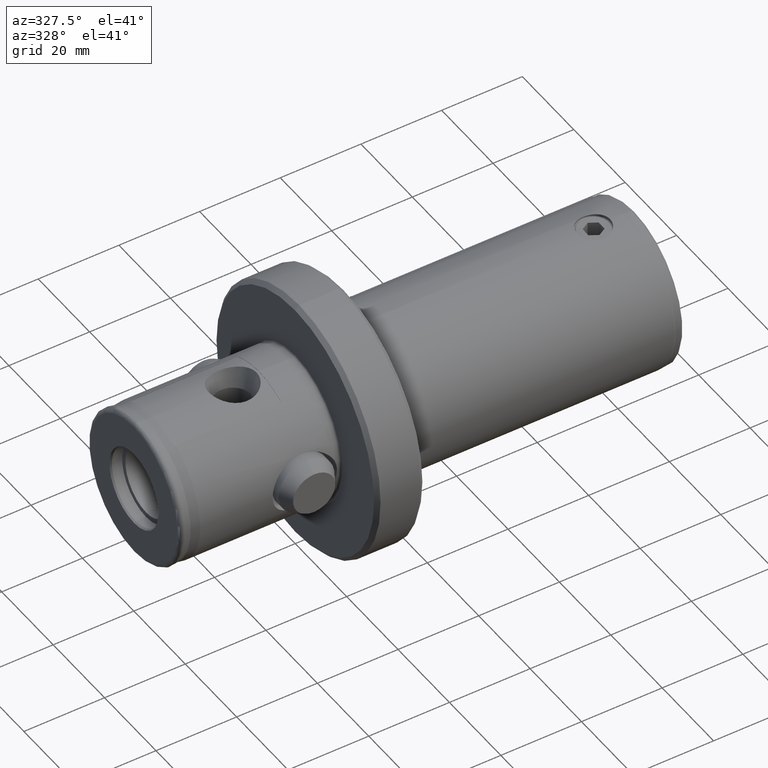
[diagram: clean part render]
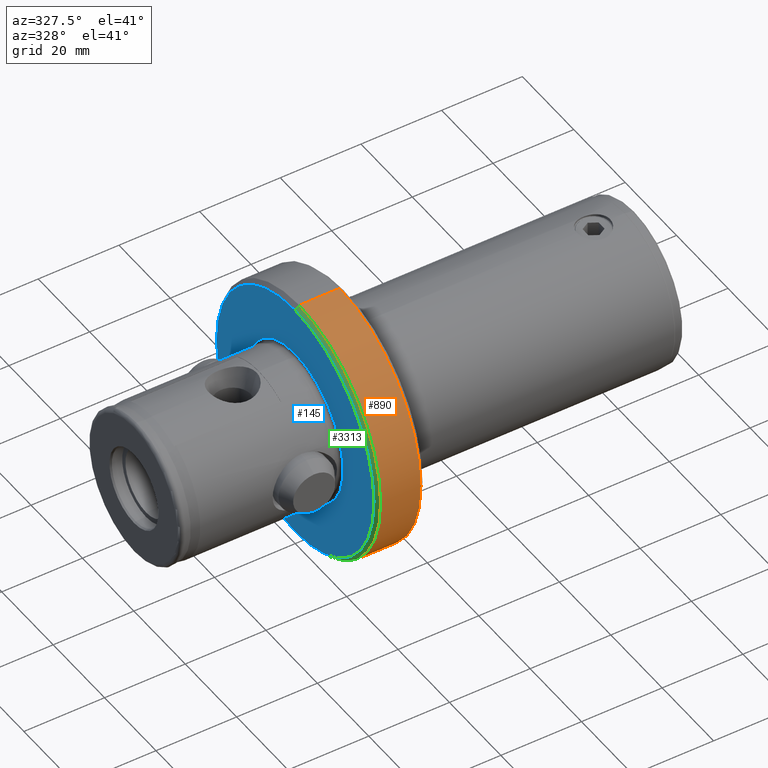
[diagram: same view with three faces highlighted in distinct colors, each labeled with its STEP entity id]
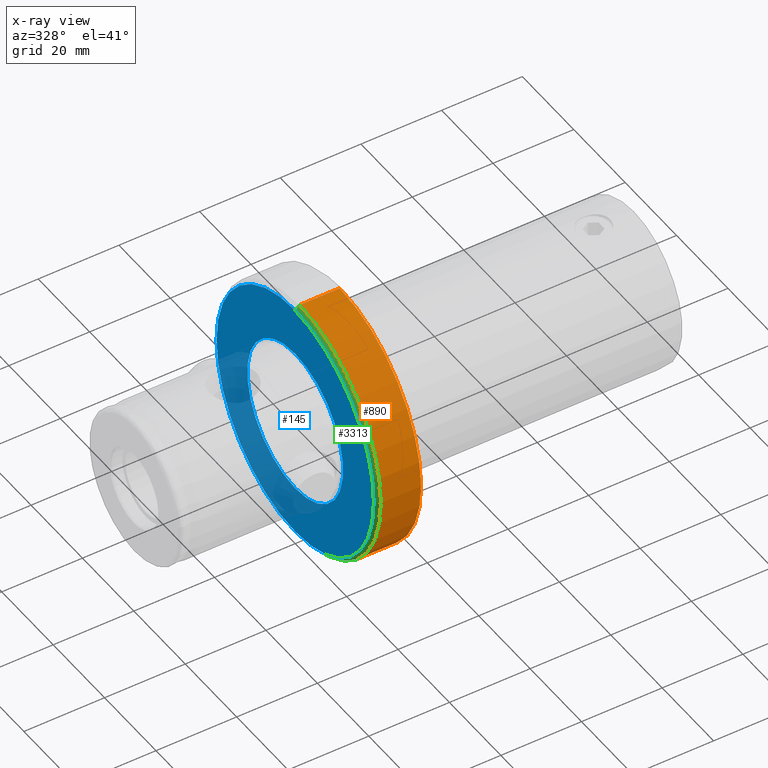
[diagram: x-ray of the same camera — body ghosted, the three highlighted faces saturated]
A machine part, auxiliary view with three faces highlighted in distinct colors.
The next image is the same camera in x-ray (body ghosted, the three faces saturated) — at least one of them is partly hidden behind the body in this view.
Their STEP definitions:

[orange] entity #890 — the highlighted cylindrical surface (partial cylindrical patch) has radius 31.635 mm, axis along (-1, -0, -0).
#10 = AXIS2_PLACEMENT_3D ( 'NONE', #1339, #4205, #1751 ) ;
#40 = AXIS2_PLACEMENT_3D ( 'NONE', #4104, #1648, #4503 ) ;
#90 = CARTESIAN_POINT ( 'NONE',  ( 51.00000000000000700, 0.0000000000000000000, 31.63500000000000500 ) ) ;
#210 = CIRCLE ( 'NONE', #40, 31.63500000000000500 ) ;
#414 = VECTOR ( 'NONE', #2721, 1000.000000000000000 ) ;
#622 = DIRECTION ( 'NONE',  ( -1.000000000000000000, -0.0000000000000000000, -0.0000000000000000000 ) ) ;
#739 = ORIENTED_EDGE ( 'NONE', *, *, #5235, .F. ) ;
#773 = EDGE_CURVE ( 'NONE', #2010, #4891, #2336, .T. ) ;
#784 = DIRECTION ( 'NONE',  ( -1.000000000000000000, -0.0000000000000000000, -0.0000000000000000000 ) ) ;
#796 = CARTESIAN_POINT ( 'NONE',  ( 41.00000000000000000, 0.0000000000000000000, 31.63500000000000500 ) ) ;
#872 = VERTEX_POINT ( 'NONE', #796 ) ;
#890 = ADVANCED_FACE ( 'NONE', ( #4126 ), #2909, .T. ) ;
#1014 = CARTESIAN_POINT ( 'NONE',  ( 0.0000000000000000000, 0.0000000000000000000, 0.0000000000000000000 ) ) ;
#1123 = ORIENTED_EDGE ( 'NONE', *, *, #2607, .T. ) ;
#1339 = CARTESIAN_POINT ( 'NONE',  ( 41.00000000000000000, 0.0000000000000000000, 0.0000000000000000000 ) ) ;
#1648 = DIRECTION ( 'NONE',  ( -1.000000000000000000, -0.0000000000000000000, -0.0000000000000000000 ) ) ;
#1697 = VERTEX_POINT ( 'NONE', #90 ) ;
#1699 = CARTESIAN_POINT ( 'NONE',  ( 51.00000000000000700, 3.874170149102652900E-015, -31.63500000000000500 ) ) ;
#1751 = DIRECTION ( 'NONE',  ( 0.0000000000000000000, 0.0000000000000000000, 1.000000000000000000 ) ) ;
#2010 = VERTEX_POINT ( 'NONE', #1699 ) ;
#2049 = CIRCLE ( 'NONE', #10, 31.63500000000000500 ) ;
#2336 = LINE ( 'NONE', #4746, #414 ) ;
#2607 = EDGE_CURVE ( 'NONE', #1697, #872, #4167, .T. ) ;
#2721 = DIRECTION ( 'NONE',  ( -1.000000000000000000, -0.0000000000000000000, -0.0000000000000000000 ) ) ;
#2799 = EDGE_LOOP ( 'NONE', ( #3910, #4906, #1123, #739 ) ) ;
#2909 = CYLINDRICAL_SURFACE ( 'NONE', #4575, 31.63500000000000500 ) ;
#3066 = CARTESIAN_POINT ( 'NONE',  ( 41.00000000000000000, 3.874170149102652900E-015, -31.63500000000000500 ) ) ;
#3069 = CARTESIAN_POINT ( 'NONE',  ( 0.0000000000000000000, 0.0000000000000000000, 31.63500000000000500 ) ) ;
#3080 = VECTOR ( 'NONE', #622, 1000.000000000000000 ) ;
#3910 = ORIENTED_EDGE ( 'NONE', *, *, #773, .F. ) ;
#4104 = CARTESIAN_POINT ( 'NONE',  ( 51.00000000000000700, 0.0000000000000000000, 0.0000000000000000000 ) ) ;
#4120 = DIRECTION ( 'NONE',  ( 0.0000000000000000000, 0.0000000000000000000, 1.000000000000000000 ) ) ;
#4126 = FACE_OUTER_BOUND ( 'NONE', #2799, .T. ) ;
#4167 = LINE ( 'NONE', #3069, #3080 ) ;
#4205 = DIRECTION ( 'NONE',  ( -1.000000000000000000, -0.0000000000000000000, -0.0000000000000000000 ) ) ;
#4492 = EDGE_CURVE ( 'NONE', #2010, #1697, #210, .T. ) ;
#4503 = DIRECTION ( 'NONE',  ( 0.0000000000000000000, 0.0000000000000000000, 1.000000000000000000 ) ) ;
#4575 = AXIS2_PLACEMENT_3D ( 'NONE', #1014, #784, #4120 ) ;
#4746 = CARTESIAN_POINT ( 'NONE',  ( 0.0000000000000000000, 3.874170149102652900E-015, -31.63500000000000500 ) ) ;
#4891 = VERTEX_POINT ( 'NONE', #3066 ) ;
#4906 = ORIENTED_EDGE ( 'NONE', *, *, #4492, .T. ) ;
#5235 = EDGE_CURVE ( 'NONE', #4891, #872, #2049, .T. ) ;

[blue] entity #145 — the highlighted planar face has unit normal (1, 0, 0).
#125 = DIRECTION ( 'NONE',  ( 1.000000000000000000, 0.0000000000000000000, 0.0000000000000000000 ) ) ;
#145 = ADVANCED_FACE ( 'NONE', ( #5148, #1746 ), #2706, .F. ) ;
#179 = EDGE_LOOP ( 'NONE', ( #3950, #1819 ) ) ;
#333 = EDGE_CURVE ( 'NONE', #3730, #4328, #2580, .T. ) ;
#474 = AXIS2_PLACEMENT_3D ( 'NONE', #1027, #3896, #1446 ) ;
#517 = DIRECTION ( 'NONE',  ( -1.000000000000000000, -0.0000000000000000000, -0.0000000000000000000 ) ) ;
#523 = DIRECTION ( 'NONE',  ( 0.0000000000000000000, 0.0000000000000000000, 1.000000000000000000 ) ) ;
#541 = CIRCLE ( 'NONE', #474, 30.63500000000000200 ) ;
#629 = EDGE_CURVE ( 'NONE', #2849, #1568, #541, .T. ) ;
#764 = CARTESIAN_POINT ( 'NONE',  ( 40.00000000000000000, 0.0000000000000000000, 0.0000000000000000000 ) ) ;
#812 = EDGE_CURVE ( 'NONE', #4328, #3730, #1240, .T. ) ;
#864 = CARTESIAN_POINT ( 'NONE',  ( 40.00000000000000000, 0.0000000000000000000, 0.0000000000000000000 ) ) ;
#870 = EDGE_CURVE ( 'NONE', #1568, #2849, #2071, .T. ) ;
#895 = DIRECTION ( 'NONE',  ( -1.000000000000000000, -0.0000000000000000000, -0.0000000000000000000 ) ) ;
#900 = DIRECTION ( 'NONE',  ( 0.0000000000000000000, 0.0000000000000000000, 1.000000000000000000 ) ) ;
#1027 = CARTESIAN_POINT ( 'NONE',  ( 40.00000000000000000, 0.0000000000000000000, 0.0000000000000000000 ) ) ;
#1103 = CARTESIAN_POINT ( 'NONE',  ( 40.00000000000000000, 0.0000000000000000000, 18.63903132955060100 ) ) ;
#1165 = DIRECTION ( 'NONE',  ( 0.0000000000000000000, 0.0000000000000000000, 1.000000000000000000 ) ) ;
#1240 = CIRCLE ( 'NONE', #2397, 18.63903132955060100 ) ;
#1356 = ORIENTED_EDGE ( 'NONE', *, *, #629, .T. ) ;
#1446 = DIRECTION ( 'NONE',  ( 0.0000000000000000000, 0.0000000000000000000, 1.000000000000000000 ) ) ;
#1501 = AXIS2_PLACEMENT_3D ( 'NONE', #4331, #125, #2291 ) ;
#1568 = VERTEX_POINT ( 'NONE', #2867 ) ;
#1746 = FACE_OUTER_BOUND ( 'NONE', #3622, .T. ) ;
#1794 = CARTESIAN_POINT ( 'NONE',  ( 40.00000000000000000, 2.282623005694137900E-015, -18.63903132955060100 ) ) ;
#1819 = ORIENTED_EDGE ( 'NONE', *, *, #333, .F. ) ;
#2071 = CIRCLE ( 'NONE', #3491, 30.63500000000000200 ) ;
#2291 = DIRECTION ( 'NONE',  ( 0.0000000000000000000, 0.0000000000000000000, -1.000000000000000000 ) ) ;
#2397 = AXIS2_PLACEMENT_3D ( 'NONE', #5009, #517, #523 ) ;
#2580 = CIRCLE ( 'NONE', #3155, 18.63903132955060100 ) ;
#2706 = PLANE ( 'NONE',  #1501 ) ;
#2849 = VERTEX_POINT ( 'NONE', #5229 ) ;
#2867 = CARTESIAN_POINT ( 'NONE',  ( 40.00000000000000000, 3.812937809145284600E-015, 30.63500000000000200 ) ) ;
#3155 = AXIS2_PLACEMENT_3D ( 'NONE', #764, #3619, #1165 ) ;
#3491 = AXIS2_PLACEMENT_3D ( 'NONE', #864, #895, #900 ) ;
#3619 = DIRECTION ( 'NONE',  ( -1.000000000000000000, -0.0000000000000000000, -0.0000000000000000000 ) ) ;
#3622 = EDGE_LOOP ( 'NONE', ( #1356, #3816 ) ) ;
#3730 = VERTEX_POINT ( 'NONE', #1794 ) ;
#3816 = ORIENTED_EDGE ( 'NONE', *, *, #870, .T. ) ;
#3896 = DIRECTION ( 'NONE',  ( -1.000000000000000000, -0.0000000000000000000, -0.0000000000000000000 ) ) ;
#3950 = ORIENTED_EDGE ( 'NONE', *, *, #812, .F. ) ;
#4328 = VERTEX_POINT ( 'NONE', #1103 ) ;
#4331 = CARTESIAN_POINT ( 'NONE',  ( 40.00000000000000000, 18.63903132955060100, 0.0000000000000000000 ) ) ;
#5009 = CARTESIAN_POINT ( 'NONE',  ( 40.00000000000000000, 0.0000000000000000000, 0.0000000000000000000 ) ) ;
#5148 = FACE_BOUND ( 'NONE', #179, .T. ) ;
#5229 = CARTESIAN_POINT ( 'NONE',  ( 40.00000000000000000, 0.0000000000000000000, -30.63500000000000200 ) ) ;

[green] entity #3313 — the highlighted conical surface has half-angle 45 deg.
#10 = AXIS2_PLACEMENT_3D ( 'NONE', #1339, #4205, #1751 ) ;
#227 = EDGE_LOOP ( 'NONE', ( #3966, #5156, #3873, #4787 ) ) ;
#248 = EDGE_CURVE ( 'NONE', #2849, #4891, #3795, .T. ) ;
#474 = AXIS2_PLACEMENT_3D ( 'NONE', #1027, #3896, #1446 ) ;
#541 = CIRCLE ( 'NONE', #474, 30.63500000000000200 ) ;
#598 = LINE ( 'NONE', #4872, #1677 ) ;
#629 = EDGE_CURVE ( 'NONE', #2849, #1568, #541, .T. ) ;
#643 = CONICAL_SURFACE ( 'NONE', #2860, 31.63500000000000500, 0.7853981633974482800 ) ;
#731 = DIRECTION ( 'NONE',  ( 1.000000000000000000, 0.0000000000000000000, 0.0000000000000000000 ) ) ;
#796 = CARTESIAN_POINT ( 'NONE',  ( 41.00000000000000000, 0.0000000000000000000, 31.63500000000000500 ) ) ;
#872 = VERTEX_POINT ( 'NONE', #796 ) ;
#902 = FACE_OUTER_BOUND ( 'NONE', #227, .T. ) ;
#1027 = CARTESIAN_POINT ( 'NONE',  ( 40.00000000000000000, 0.0000000000000000000, 0.0000000000000000000 ) ) ;
#1339 = CARTESIAN_POINT ( 'NONE',  ( 41.00000000000000000, 0.0000000000000000000, 0.0000000000000000000 ) ) ;
#1446 = DIRECTION ( 'NONE',  ( 0.0000000000000000000, 0.0000000000000000000, 1.000000000000000000 ) ) ;
#1471 = DIRECTION ( 'NONE',  ( 0.0000000000000000000, 0.0000000000000000000, -1.000000000000000000 ) ) ;
#1493 = VECTOR ( 'NONE', #1932, 1000.000000000000000 ) ;
#1523 = CARTESIAN_POINT ( 'NONE',  ( 41.00000000000000000, 0.0000000000000000000, -31.63500000000000500 ) ) ;
#1541 = EDGE_CURVE ( 'NONE', #1568, #872, #598, .T. ) ;
#1568 = VERTEX_POINT ( 'NONE', #2867 ) ;
#1677 = VECTOR ( 'NONE', #4062, 1000.000000000000000 ) ;
#1751 = DIRECTION ( 'NONE',  ( 0.0000000000000000000, 0.0000000000000000000, 1.000000000000000000 ) ) ;
#1932 = DIRECTION ( 'NONE',  ( 0.7071067811865475700, 0.0000000000000000000, -0.7071067811865474600 ) ) ;
#1936 = CARTESIAN_POINT ( 'NONE',  ( 41.00000000000000000, 0.0000000000000000000, 0.0000000000000000000 ) ) ;
#2049 = CIRCLE ( 'NONE', #10, 31.63500000000000500 ) ;
#2849 = VERTEX_POINT ( 'NONE', #5229 ) ;
#2860 = AXIS2_PLACEMENT_3D ( 'NONE', #1936, #731, #1471 ) ;
#2867 = CARTESIAN_POINT ( 'NONE',  ( 40.00000000000000000, 3.812937809145284600E-015, 30.63500000000000200 ) ) ;
#3066 = CARTESIAN_POINT ( 'NONE',  ( 41.00000000000000000, 3.874170149102652900E-015, -31.63500000000000500 ) ) ;
#3313 = ADVANCED_FACE ( 'NONE', ( #902 ), #643, .T. ) ;
#3795 = LINE ( 'NONE', #1523, #1493 ) ;
#3873 = ORIENTED_EDGE ( 'NONE', *, *, #248, .T. ) ;
#3896 = DIRECTION ( 'NONE',  ( -1.000000000000000000, -0.0000000000000000000, -0.0000000000000000000 ) ) ;
#3966 = ORIENTED_EDGE ( 'NONE', *, *, #1541, .F. ) ;
#4062 = DIRECTION ( 'NONE',  ( 0.7071067811865475700, 8.659560562354931600E-017, 0.7071067811865474600 ) ) ;
#4205 = DIRECTION ( 'NONE',  ( -1.000000000000000000, -0.0000000000000000000, -0.0000000000000000000 ) ) ;
#4787 = ORIENTED_EDGE ( 'NONE', *, *, #5235, .T. ) ;
#4872 = CARTESIAN_POINT ( 'NONE',  ( 41.00000000000000000, 3.874170149102652900E-015, 31.63500000000000500 ) ) ;
#4891 = VERTEX_POINT ( 'NONE', #3066 ) ;
#5156 = ORIENTED_EDGE ( 'NONE', *, *, #629, .F. ) ;
#5229 = CARTESIAN_POINT ( 'NONE',  ( 40.00000000000000000, 0.0000000000000000000, -30.63500000000000200 ) ) ;
#5235 = EDGE_CURVE ( 'NONE', #4891, #872, #2049, .T. ) ;